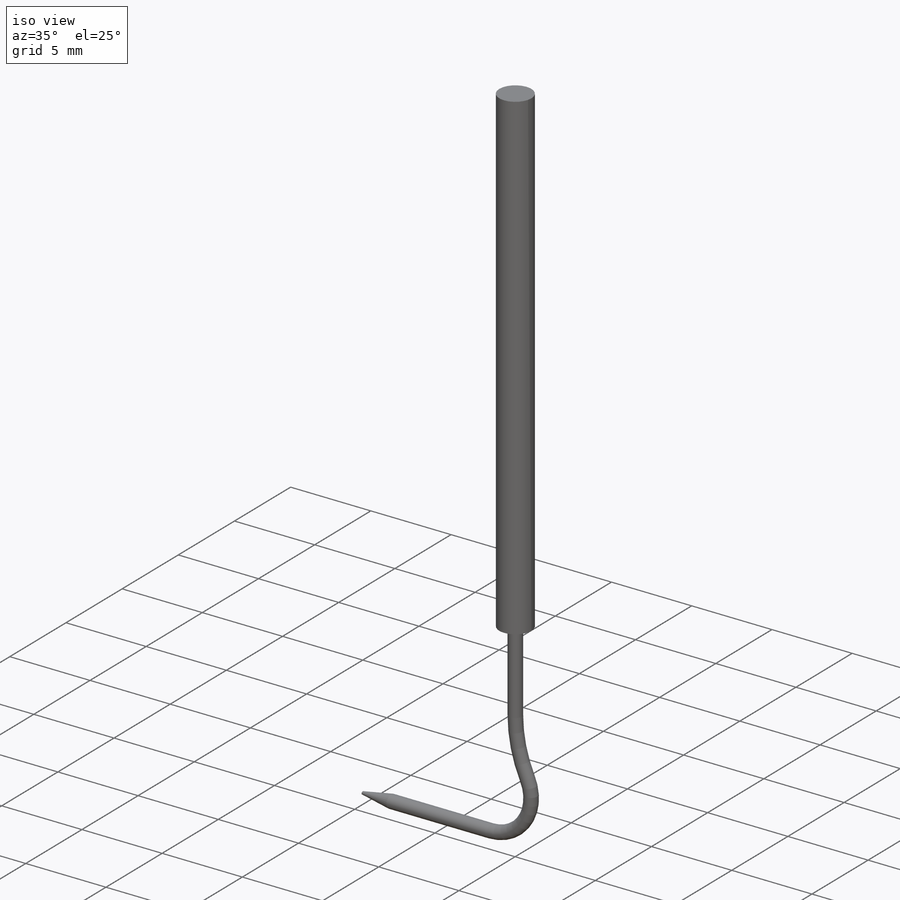
[diagram: iso view]
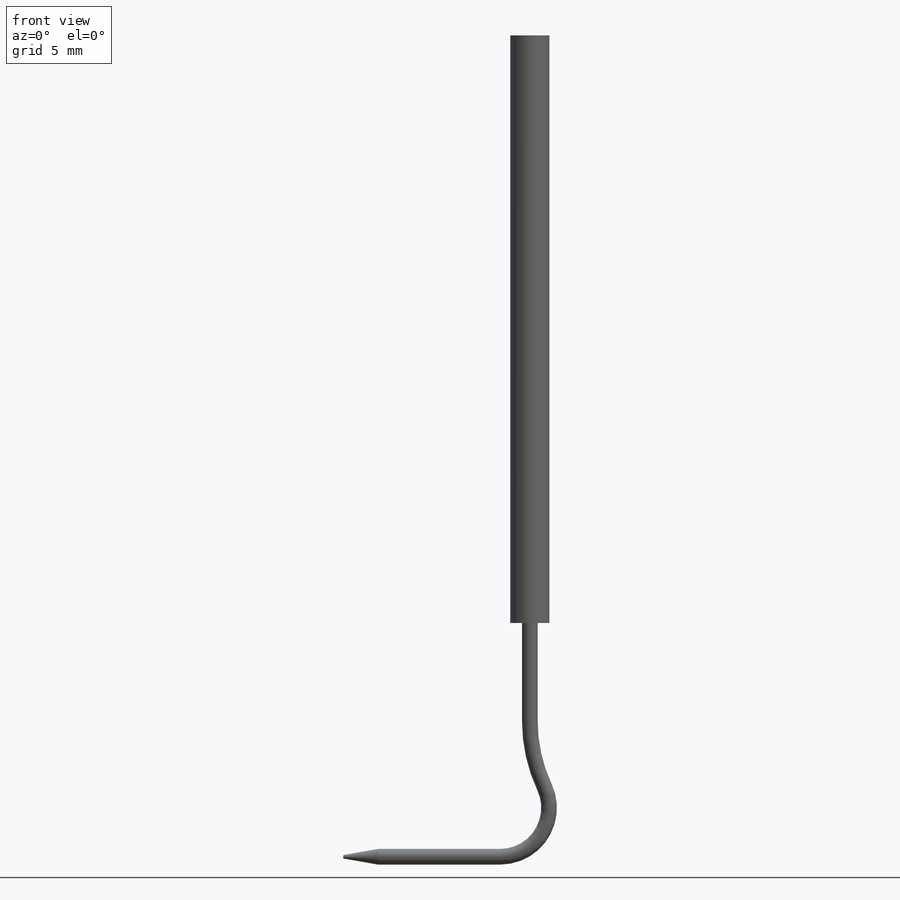
[diagram: front view]
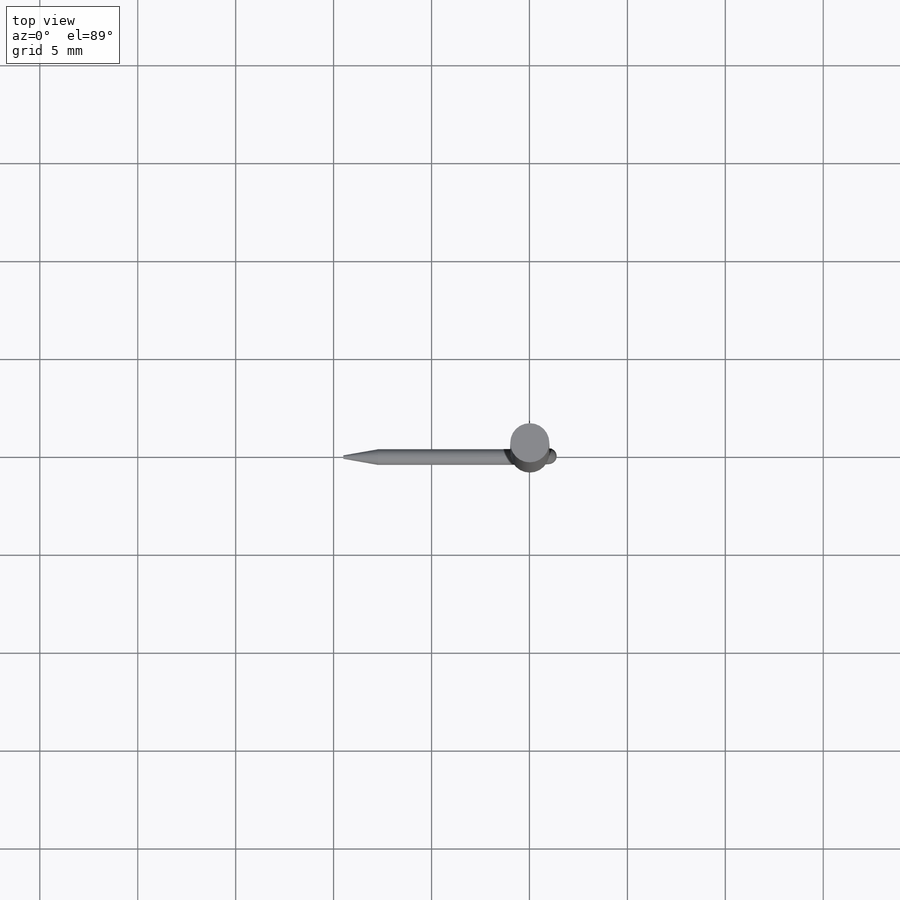
[diagram: top view]
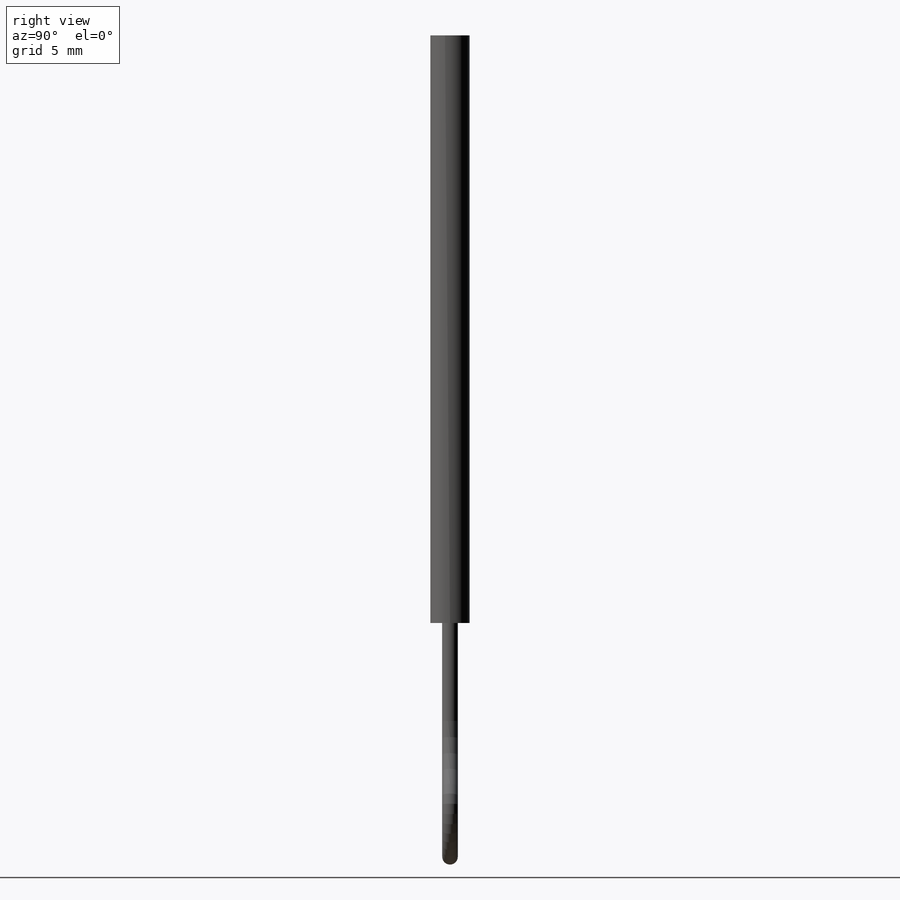
[diagram: right view]
SOLIDWORKS PART (.sldprt)
format: sldprt  version: not decoded by parser v0  size: 162,816 bytes
history: native  units: mm
features: sketch x5, material x1, revolve x1, cut_extrude x1, sweep x1, extrude x1 (+16 scaffold rows collapsed)
feature tree (26):
  scaffold x16  (default folders/planes/origin — collapsed)
  material  "Copper"
  sketch  "Sketch1"  dims[c1.D1=0.8mm c1.D2=8.0mm c1.D3=~2.250456mm c2.D3=10.0deg c2.D2=3.0mm]
  revolve  "Revolve1"  Angle=360deg
  sketch  "Sketch2"  dims[D1=1.0mm]
  cut_extrude  "Cut-Extrude1"  [1 undecoded]
  sketch  "Sketch3"
  sketch  "Sketch4"  dims[c1.D2=2.5mm c1.D3=8.0mm c1.D1=0.5mm c1.D4=5.0mm c1.D5=2.5mm c2.D5=115.0deg c2.D1=1.0mm]
  sweep  "Sweep1"
  sketch  "Sketch5"  dims[D1=0.6mm]
  extrude  "Boss-Extrude1"  Depth=30mm
decode coverage: 6 of 9 modeling features carry decoded parameters
note: ~ marks probable driven/reference dimensions
note: 1 parameter value undecoded
note: suppression state not decoded; provenance and decode notes live in map.json
